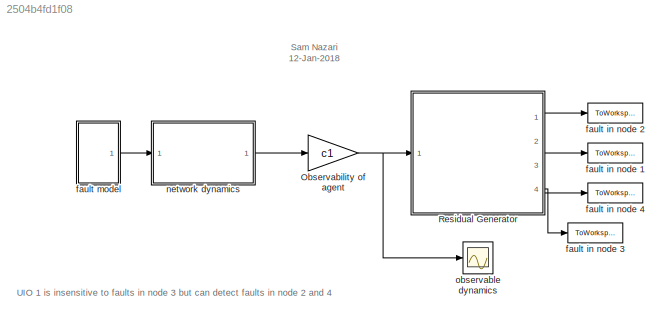
MODEL slx_2504b4fd1f08
KIND model
CONFIG AbsTol = auto
CONFIG EnableMultiTasking = on
CONFIG FixedStep = auto
CONFIG MaxStep = auto
CONFIG MinStep = auto
CONFIG RelTol = 1e-3
CONFIG SampleTimeConstraint = Unconstrained
CONFIG Solver = ode45
CONFIG SolverName = ode45
CONFIG StartTime = 0.0
CONFIG StopTime = TSIM
BLOCK [Gain] Observability of agent 
  Gain = c1
  Multiplication = Matrix(K*u)
  OutDataTypeStr = Inherit: Inherit via internal rule
  ParamDataTypeStr = Inherit: Inherit via internal rule
  SaturateOnIntegerOverflow = off
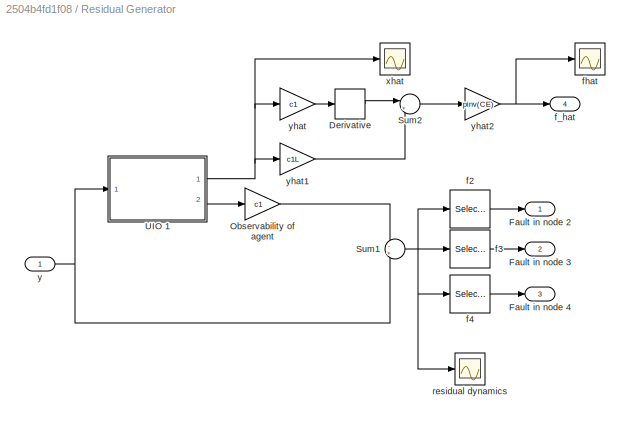
BLOCK [SubSystem] Residual Generator
  Ports = [1, 4]
  RequestExecContextInheritance = off
  Variant = off
BLOCK [Derivative] Residual Generator/Derivative
  CoefficientInTFapproximation = 1e5
BLOCK [Outport] Residual Generator/Fault in node 2
  IconDisplay = Port number
BLOCK [Outport] Residual Generator/Fault in node 3
  IconDisplay = Port number
  Port = 2
BLOCK [Outport] Residual Generator/Fault in node 4
  IconDisplay = Port number
  Port = 3
BLOCK [Gain] Residual Generator/Observability of agent 
  Gain = c1
  Multiplication = Matrix(K*u)
  OutDataTypeStr = Inherit: Inherit via internal rule
  ParamDataTypeStr = Inherit: Inherit via internal rule
  SaturateOnIntegerOverflow = off
BLOCK [Sum] Residual Generator/Sum1
  IconShape = round
  InputSameDT = off
  Inputs = -+
  OutDataTypeStr = Inherit: Inherit via internal rule
  Ports = [2, 1]
  SaturateOnIntegerOverflow = off
BLOCK [Sum] Residual Generator/Sum2
  IconShape = round
  InputSameDT = off
  Inputs = |+-
  OutDataTypeStr = Inherit: Inherit via internal rule
  Ports = [2, 1]
  SaturateOnIntegerOverflow = off
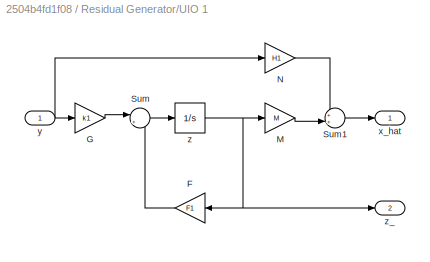
BLOCK [SubSystem] Residual Generator/UIO 1
  Ports = [1, 2]
  RequestExecContextInheritance = off
  Variant = off
BLOCK [Gain] Residual Generator/UIO 1/F
  Gain = F1
  Multiplication = Matrix(K*u)
  OutDataTypeStr = Inherit: Inherit via internal rule
  ParamDataTypeStr = Inherit: Inherit via internal rule
  SaturateOnIntegerOverflow = off
BLOCK [Gain] Residual Generator/UIO 1/G
  Gain = k1
  Multiplication = Matrix(K*u)
  OutDataTypeStr = Inherit: Inherit via internal rule
  ParamDataTypeStr = Inherit: Inherit via internal rule
  SaturateOnIntegerOverflow = off
BLOCK [Gain] Residual Generator/UIO 1/M
  Gain = M
  Multiplication = Matrix(K*u)
  OutDataTypeStr = Inherit: Inherit via internal rule
  ParamDataTypeStr = Inherit: Inherit via internal rule
  SaturateOnIntegerOverflow = off
BLOCK [Gain] Residual Generator/UIO 1/N
  Gain = H1
  Multiplication = Matrix(K*u)
  OutDataTypeStr = Inherit: Inherit via internal rule
  ParamDataTypeStr = Inherit: Inherit via internal rule
  SaturateOnIntegerOverflow = off
BLOCK [Sum] Residual Generator/UIO 1/Sum
  IconShape = round
  InputSameDT = off
  Inputs = |++
  OutDataTypeStr = Inherit: Inherit via internal rule
  Ports = [2, 1]
  SaturateOnIntegerOverflow = off
BLOCK [Sum] Residual Generator/UIO 1/Sum1
  IconShape = round
  InputSameDT = off
  Inputs = ++|
  OutDataTypeStr = Inherit: Inherit via internal rule
  Ports = [2, 1]
  SaturateOnIntegerOverflow = off
BLOCK [Outport] Residual Generator/UIO 1/x_hat
  IconDisplay = Port number
BLOCK [Inport] Residual Generator/UIO 1/y
  IconDisplay = Port number
BLOCK [Integrator] Residual Generator/UIO 1/z
  Ports = [1, 1]
BLOCK [Outport] Residual Generator/UIO 1/z_
  IconDisplay = Port number
  Port = 2
BLOCK [Selector] Residual Generator/f2
  IndexOptions = Index vector (dialog)
  Indices = 1
  InputPortWidth = 3
  OutputSizes = 1
  Ports = [1, 1]
BLOCK [Selector] Residual Generator/f3
  IndexOptions = Index vector (dialog)
  Indices = 2
  InputPortWidth = 3
  OutputSizes = 1
  Ports = [1, 1]
BLOCK [Selector] Residual Generator/f4
  IndexOptions = Index vector (dialog)
  Indices = 3
  InputPortWidth = 3
  OutputSizes = 1
  Ports = [1, 1]
BLOCK [Outport] Residual Generator/f_hat
  IconDisplay = Port number
  Port = 4
BLOCK [Scope] Residual Generator/fhat 
  NumInputPorts = 1
  Ports = [1]
  ScopeSpecificationString = Simulink.scopes.TimeScopeBlockCfg('CurrentConfiguration', extmgr.ConfigurationSet(extmgr.Configuration('Core','General UI',true),extmgr.Configuration('Core','Source UI',true),extmgr.Configuration('Sources','WiredSimulink',true,'DataLoggingVariableName','ScopeData1','DataLoggingLimitDataPoints',true,'DataLoggingSaveFormat','Array','DataLoggingDecimation','1','DataLoggingDecimateData',true),extmgr.C...<+1493ch>
BLOCK [Scope] Residual Generator/residual dynamics
  NumInputPorts = 1
  Ports = [1]
  ScopeSpecificationString = Simulink.scopes.TimeScopeBlockCfg('CurrentConfiguration', extmgr.ConfigurationSet(extmgr.Configuration('Core','General UI',true),extmgr.Configuration('Core','Source UI',true),extmgr.Configuration('Sources','WiredSimulink',true,'DataLoggingSaveFormat','StructureWithTime','DataLoggingDecimation','1','DataLoggingDecimateData',true,'DataLoggingVariableName','ScopeData2'),extmgr.Configuration('Visuals'...<+1681ch>
BLOCK [Scope] Residual Generator/xhat
  NumInputPorts = 1
  Ports = [1]
  ScopeSpecificationString = C++SS(StrPVP('SaveName','ScopeData2'),StrPVP('LimitDataPoints','on'),StrPVP('DataFormat','Array'),StrPVP('Decimation','1'),StrPVP('BlockParamSampleInput','off'))
BLOCK [Inport] Residual Generator/y
  IconDisplay = Port number
BLOCK [Gain] Residual Generator/yhat
  Gain = c1
  Multiplication = Matrix(K*u) (u vector)
  OutDataTypeStr = Inherit: Inherit via internal rule
  ParamDataTypeStr = Inherit: Inherit via internal rule
  SaturateOnIntegerOverflow = off
BLOCK [Gain] Residual Generator/yhat1
  Gain = c1L
  Multiplication = Matrix(K*u) (u vector)
  OutDataTypeStr = Inherit: Inherit via internal rule
  ParamDataTypeStr = Inherit: Inherit via internal rule
  SaturateOnIntegerOverflow = off
BLOCK [Gain] Residual Generator/yhat2
  Gain = pinv(CE)
  Multiplication = Matrix(K*u) (u vector)
  OutDataTypeStr = Inherit: Inherit via internal rule
  ParamDataTypeStr = Inherit: Inherit via internal rule
  SaturateOnIntegerOverflow = off
BLOCK [ToWorkspace] fault in node 1
  FixptAsFi = on
  MaxDataPoints = inf
  Ports = [1]
  SampleTime = -1
  Save2DSignal = 3-D array (concatenate along third dimension)
  SaveFormat = Timeseries
  VariableName = fn3
BLOCK [ToWorkspace] fault in node 2
  FixptAsFi = on
  MaxDataPoints = inf
  Ports = [1]
  SampleTime = -1
  Save2DSignal = 3-D array (concatenate along third dimension)
  SaveFormat = Timeseries
  VariableName = fn2
BLOCK [ToWorkspace] fault in node 3
  FixptAsFi = on
  MaxDataPoints = inf
  Ports = [1]
  SampleTime = -1
  Save2DSignal = 3-D array (concatenate along third dimension)
  SaveFormat = Timeseries
  VariableName = fhat_uio
BLOCK [ToWorkspace] fault in node 4
  FixptAsFi = on
  MaxDataPoints = inf
  Ports = [1]
  SampleTime = -1
  Save2DSignal = 3-D array (concatenate along third dimension)
  SaveFormat = Timeseries
  VariableName = fn4
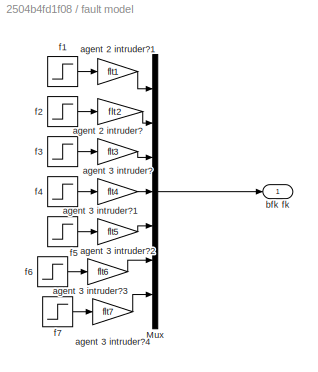
BLOCK [SubSystem] fault model
  Ports = [0, 1]
  RequestExecContextInheritance = off
  Variant = off
BLOCK [Mux] fault model/Mux
  DisplayOption = bar
  Inputs = 7
  Ports = [7, 1]
BLOCK [Gain] fault model/agent 2 intruder?
  Gain = flt2
  Multiplication = Matrix(K*u)
  OutDataTypeStr = Inherit: Inherit via internal rule
  ParamDataTypeStr = Inherit: Inherit via internal rule
  SaturateOnIntegerOverflow = off
BLOCK [Gain] fault model/agent 2 intruder?1
  Gain = flt1
  Multiplication = Matrix(K*u)
  OutDataTypeStr = Inherit: Inherit via internal rule
  ParamDataTypeStr = Inherit: Inherit via internal rule
  SaturateOnIntegerOverflow = off
BLOCK [Gain] fault model/agent 3 intruder?
  Gain = flt3
  OutDataTypeStr = Inherit: Inherit via internal rule
  ParamDataTypeStr = Inherit: Inherit via internal rule
  SaturateOnIntegerOverflow = off
BLOCK [Gain] fault model/agent 3 intruder?1
  Gain = flt4
  OutDataTypeStr = Inherit: Inherit via internal rule
  ParamDataTypeStr = Inherit: Inherit via internal rule
  SaturateOnIntegerOverflow = off
BLOCK [Gain] fault model/agent 3 intruder?2
  Gain = flt5
  OutDataTypeStr = Inherit: Inherit via internal rule
  ParamDataTypeStr = Inherit: Inherit via internal rule
  SaturateOnIntegerOverflow = off
BLOCK [Gain] fault model/agent 3 intruder?3
  Gain = flt6
  OutDataTypeStr = Inherit: Inherit via internal rule
  ParamDataTypeStr = Inherit: Inherit via internal rule
  SaturateOnIntegerOverflow = off
BLOCK [Gain] fault model/agent 3 intruder?4
  Gain = flt7
  OutDataTypeStr = Inherit: Inherit via internal rule
  ParamDataTypeStr = Inherit: Inherit via internal rule
  SaturateOnIntegerOverflow = off
BLOCK [Outport] fault model/bfk fk
  IconDisplay = Port number
BLOCK [Step] fault model/f1
  After = f1Val
  SampleTime = tf1
BLOCK [Step] fault model/f2
  After = f2Val
  SampleTime = tf2
BLOCK [Step] fault model/f3
  After = f3Val
  SampleTime = tf3
BLOCK [Step] fault model/f4
  After = f4Val
  SampleTime = tf4
BLOCK [Step] fault model/f5
  After = f5Val
  SampleTime = tf5
BLOCK [Step] fault model/f6
  After = f6Val
  SampleTime = tf6
BLOCK [Step] fault model/f7
  After = f7Val
  SampleTime = tf7
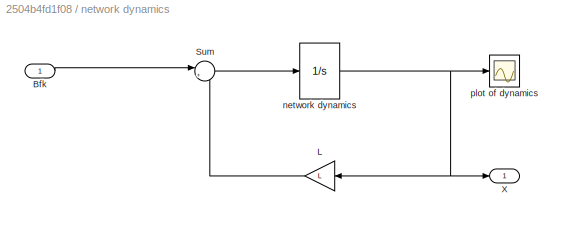
BLOCK [SubSystem] network dynamics
  Ports = [1, 1]
  RequestExecContextInheritance = off
  Variant = off
BLOCK [Inport] network dynamics/Bfk
  IconDisplay = Port number
BLOCK [Gain] network dynamics/L
  Gain = L
  Multiplication = Matrix(K*u)
  OutDataTypeStr = Inherit: Inherit via internal rule
  ParamDataTypeStr = Inherit: Inherit via internal rule
  SaturateOnIntegerOverflow = off
BLOCK [Sum] network dynamics/Sum
  IconShape = round
  InputSameDT = off
  Inputs = |+-
  OutDataTypeStr = Inherit: Inherit via internal rule
  Ports = [2, 1]
  SaturateOnIntegerOverflow = off
BLOCK [Outport] network dynamics/X
  IconDisplay = Port number
BLOCK [Integrator] network dynamics/network dynamics
  InitialCondition = x0
  Ports = [1, 1]
BLOCK [Scope] network dynamics/plot of dynamics
  NumInputPorts = 1
  Ports = [1]
  ScopeSpecificationString = Simulink.scopes.TimeScopeBlockCfg('CurrentConfiguration', extmgr.ConfigurationSet(extmgr.Configuration('Core','General UI',true),extmgr.Configuration('Core','Source UI',true),extmgr.Configuration('Sources','WiredSimulink',true,'DataLoggingSaveFormat','StructureWithTime','DataLoggingDecimation','1','DataLoggingDecimateData',true),extmgr.Configuration('Visuals','Time Domain',true,'SerializedDisplays...<+1792ch>
BLOCK [Scope] observable dynamics
  NumInputPorts = 1
  Ports = [1]
  ScopeSpecificationString = Simulink.scopes.TimeScopeBlockCfg('CurrentConfiguration', extmgr.ConfigurationSet(extmgr.Configuration('Core','General UI',true),extmgr.Configuration('Core','Source UI',true),extmgr.Configuration('Sources','WiredSimulink',true,'DataLoggingSaveFormat','StructureWithTime','DataLoggingDecimation','1','DataLoggingDecimateData',true,'DataLoggingVariableName','ScopeData1'),extmgr.Configuration('Visuals'...<+1688ch>
ANNOTATION (root): Sam Nazari 12-Jan-2018
ANNOTATION (root): UIO 1 is insensitive to faults in node 3 but can detect faults in node 2 and 4
NET Observability of agent :1 -> Residual Generator:1, observable dynamics:1
LINE Residual Generator/Derivative:1 -> Residual Generator/Sum2:1
LINE Residual Generator/Observability of agent :1 -> Residual Generator/Sum1:1
NET Residual Generator/Sum1:1 -> Residual Generator/f2:1, Residual Generator/f3:1, Residual Generator/f4:1, Residual Generator/residual dynamics:1
LINE Residual Generator/Sum2:1 -> Residual Generator/yhat2:1
LINE Residual Generator/UIO 1/F:1 -> Residual Generator/UIO 1/Sum:2
LINE Residual Generator/UIO 1/G:1 -> Residual Generator/UIO 1/Sum:1
LINE Residual Generator/UIO 1/M:1 -> Residual Generator/UIO 1/Sum1:2
LINE Residual Generator/UIO 1/N:1 -> Residual Generator/UIO 1/Sum1:1
LINE Residual Generator/UIO 1/Sum1:1 -> Residual Generator/UIO 1/x_hat:1
LINE Residual Generator/UIO 1/Sum:1 -> Residual Generator/UIO 1/z:1
NET Residual Generator/UIO 1/y:1 -> Residual Generator/UIO 1/G:1, Residual Generator/UIO 1/N:1
NET Residual Generator/UIO 1/z:1 -> Residual Generator/UIO 1/F:1, Residual Generator/UIO 1/M:1, Residual Generator/UIO 1/z_:1
NET Residual Generator/UIO 1:1 -> Residual Generator/xhat:1, Residual Generator/yhat1:1, Residual Generator/yhat:1
LINE Residual Generator/UIO 1:2 -> Residual Generator/Observability of agent :1
LINE Residual Generator/f2:1 -> Residual Generator/Fault in node 2:1
LINE Residual Generator/f3:1 -> Residual Generator/Fault in node 3:1
LINE Residual Generator/f4:1 -> Residual Generator/Fault in node 4:1
NET Residual Generator/y:1 -> Residual Generator/Sum1:2, Residual Generator/UIO 1:1
LINE Residual Generator/yhat1:1 -> Residual Generator/Sum2:2
NET Residual Generator/yhat2:1 -> Residual Generator/f_hat:1, Residual Generator/fhat :1
LINE Residual Generator/yhat:1 -> Residual Generator/Derivative:1
LINE Residual Generator:1 -> fault in node 2:1
LINE Residual Generator:2 -> fault in node 1:1
LINE Residual Generator:3 -> fault in node 4:1
LINE Residual Generator:4 -> fault in node 3:1
LINE fault model/Mux:1 -> fault model/bfk fk:1
LINE fault model/agent 2 intruder?1:1 -> fault model/Mux:1
LINE fault model/agent 2 intruder?:1 -> fault model/Mux:2
LINE fault model/agent 3 intruder?1:1 -> fault model/Mux:4
LINE fault model/agent 3 intruder?2:1 -> fault model/Mux:5
LINE fault model/agent 3 intruder?3:1 -> fault model/Mux:6
LINE fault model/agent 3 intruder?4:1 -> fault model/Mux:7
LINE fault model/agent 3 intruder?:1 -> fault model/Mux:3
LINE fault model/f1:1 -> fault model/agent 2 intruder?1:1
LINE fault model/f2:1 -> fault model/agent 2 intruder?:1
LINE fault model/f3:1 -> fault model/agent 3 intruder?:1
LINE fault model/f4:1 -> fault model/agent 3 intruder?1:1
LINE fault model/f5:1 -> fault model/agent 3 intruder?2:1
LINE fault model/f6:1 -> fault model/agent 3 intruder?3:1
LINE fault model/f7:1 -> fault model/agent 3 intruder?4:1
LINE fault model:1 -> network dynamics:1
LINE network dynamics/Bfk:1 -> network dynamics/Sum:1
LINE network dynamics/L:1 -> network dynamics/Sum:2
LINE network dynamics/Sum:1 -> network dynamics/network dynamics:1
NET network dynamics/network dynamics:1 -> network dynamics/L:1, network dynamics/X:1, network dynamics/plot of dynamics:1
LINE network dynamics:1 -> Observability of agent :1
note: NET lines group one-source signal fan-out (src -> all destinations, sorted); 1:1 wires keep LINE
